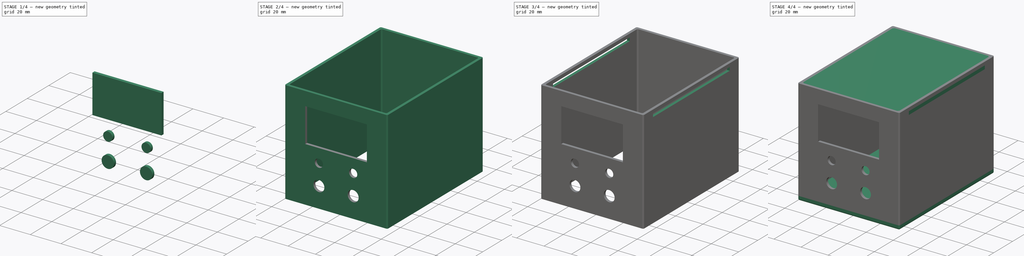
[diagram: build sequence overview — one tinted view per stage of 4, left to right]
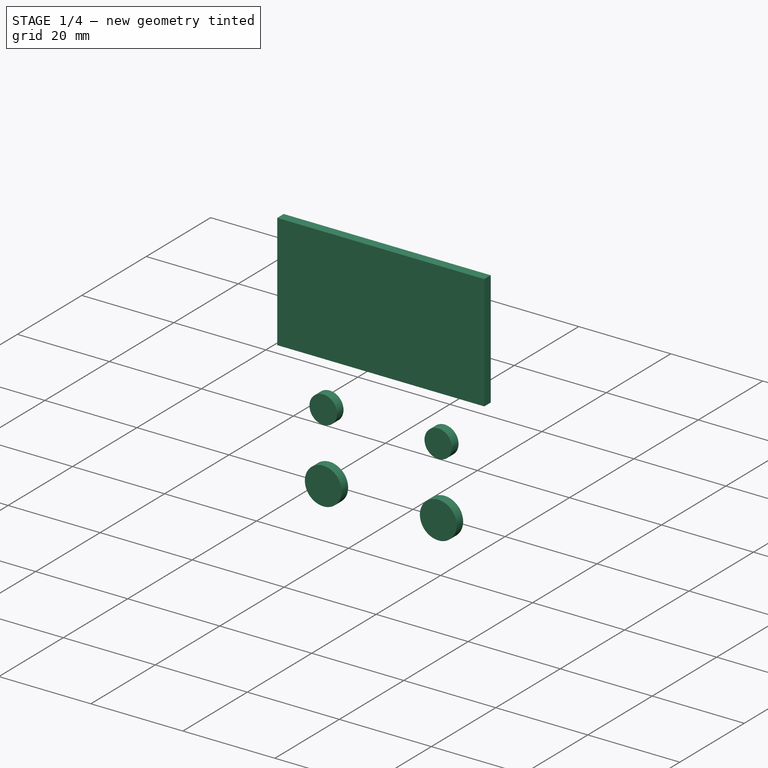
[diagram: stage 1 of 4 — iso view after this stage's code; geometry added in this stage tinted green]
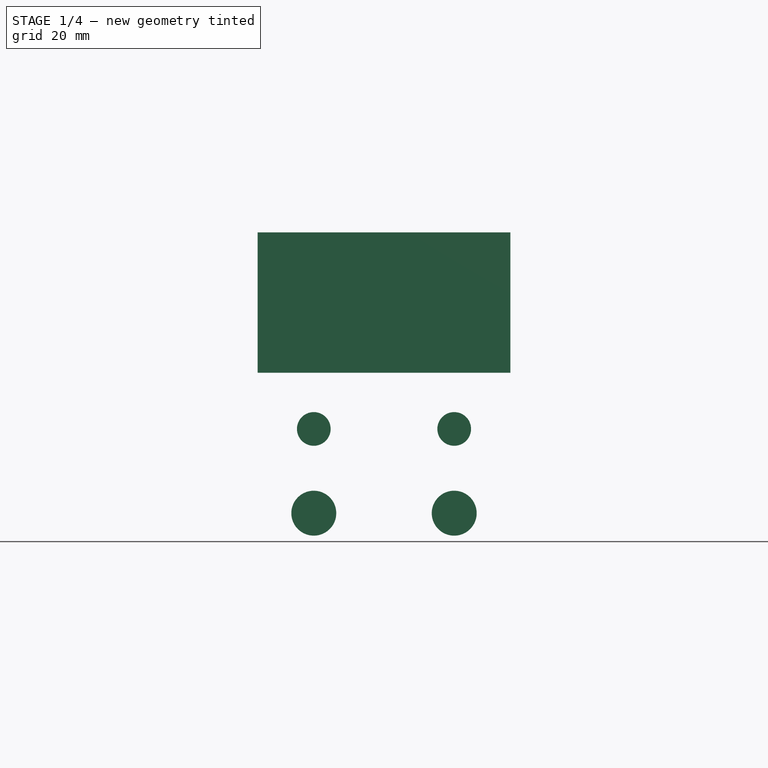
[diagram: stage 1 of 4 — front view after this stage's code; geometry added in this stage tinted green]
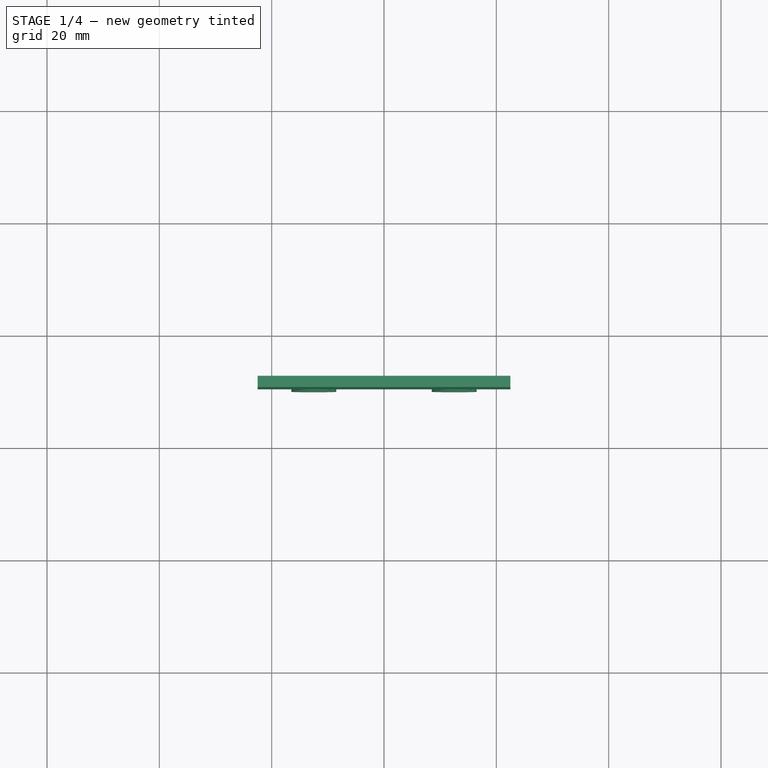
[diagram: stage 1 of 4 — top view after this stage's code; geometry added in this stage tinted green]
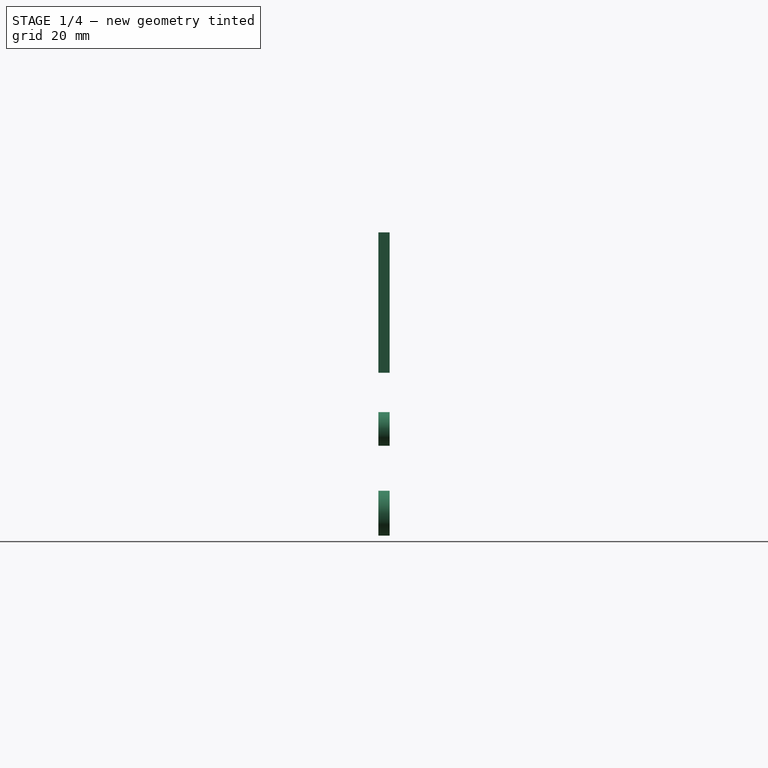
[diagram: stage 1 of 4 — right view after this stage's code; geometry added in this stage tinted green]
FCSTD DOCUMENT  (FreeCAD 0.20R)
Label: VariablePowerSupply
License: All rights reserved
LicenseURL: http://en.wikipedia.org/wiki/All_rights_reserved
objects: Sketcher::SketchObject×7, Part::Extrusion×7, Part::FeaturePython×2, Part::MultiFuse×2, Part::Fillet×1, Spreadsheet::Sheet×1, Part::Cut×1, Part::Mirroring×1
note: 21 computed .brp shape members not serialized (recipe doc carries the construction recipe); baked Part::Feature solids carry a one-line shape summary decoded from their .brp

FEATURE [Sketcher::SketchObject] Sketch
  FullyConstrained = true
  expr: Constraints[10] = Spreadsheet.BaseWidth
  expr: Constraints[11] = Spreadsheet.BaseLength
  sketch-geometry (5):
    g0: LineSegment StartX=37.5 StartY=-50 StartZ=0 EndX=37.5 EndY=50 EndZ=0
    g1: LineSegment StartX=37.5 StartY=50 StartZ=0 EndX=-37.5 EndY=50 EndZ=0
    g2: LineSegment StartX=-37.5 StartY=50 StartZ=0 EndX=-37.5 EndY=-50 EndZ=0
    g3: LineSegment StartX=-37.5 StartY=-50 StartZ=0 EndX=37.5 EndY=-50 EndZ=0
    g4: GeomPoint X=0 Y=-1e-16 Z=0
  constraints (12):
    c: Coincident(g0,g1)
    c: Coincident(g1,g2)
    c: Coincident(g2,g3)
    c: Coincident(g3,g0)
    c: Horizontal(g1)
    c: Horizontal(g3)
    c: Vertical(g0)
    c: Vertical(g2)
    c: Symmetric(g1,g0,g4)
    c: Coincident(g4,g-1)
    c: DistanceX(g3,g3) = 75
    c: DistanceY(g0,g0) = 100
FEATURE [Part::Extrusion] Extrude
  Base = -> Sketch
  Dir = (0,0,1)
  DirMode = 2
  FaceMakerClass = Part::FaceMakerBullseye
  LengthFwd = 3
  LengthRev = 0
  Solid = true
  Symmetric = false
  expr: LengthFwd = Spreadsheet.BaseThickness
FEATURE [Part::Fillet] Fillet
  Base = -> Extrude
  Edges = 8 edges r=1: [Edge1,Edge2,Edge3,Edge5,Edge6,Edge8,Edge9,Edge11]
  expr: .Placement.Rotation.Axis.z = Spreadsheet.Chamfer
FEATURE [Sketcher::SketchObject] Sketch001
  ExternalGeometry = -> [Fillet]
  FullyConstrained = true
  MapMode = 5
  Placement = pos=(0,0,3) rot=(0,0,1;0rad)
  Support = -> [Fillet]
  expr: Constraints[43] = Spreadsheet.WallThickness
  expr: Constraints[44] = Spreadsheet.WallThickness
  sketch-geometry (20):
    g0: ArcOfCircle CenterX=-36.5 CenterY=49 CenterZ=0 NormalX=0 NormalY=0 NormalZ=1 AngleXU=0 Radius=1 StartAngle=1.5708 EndAngle=3.14159
    g1: LineSegment StartX=-36.5 StartY=50 StartZ=0 EndX=36.5 EndY=50 EndZ=0
    g2: ArcOfCircle CenterX=36.5 CenterY=49 CenterZ=0 NormalX=0 NormalY=0 NormalZ=1 AngleXU=0 Radius=1 StartAngle=-3.6e-15 EndAngle=1.5708
    g3: LineSegment StartX=37.5 StartY=49 StartZ=0 EndX=37.5 EndY=-49 EndZ=0
    g4: ArcOfCircle CenterX=36.5 CenterY=-49 CenterZ=0 NormalX=0 NormalY=0 NormalZ=1 AngleXU=0 Radius=1 StartAngle=4.71239 EndAngle=6.28319
    g5: LineSegment StartX=36.5 StartY=-50 StartZ=0 EndX=-36.5 EndY=-50 EndZ=0
    g6: ArcOfCircle CenterX=-36.5 CenterY=-49 CenterZ=0 NormalX=0 NormalY=0 NormalZ=1 AngleXU=0 Radius=1 StartAngle=3.14159 EndAngle=4.71239
    g7: LineSegment StartX=-37.5 StartY=-49 StartZ=0 EndX=-37.5 EndY=49 EndZ=0
    g8: GeomPoint X=-37.5 Y=50 Z=0
    g9: GeomPoint X=37.5 Y=-50 Z=0
    g10: ArcOfCircle CenterX=-34.5 CenterY=47 CenterZ=0 NormalX=0 NormalY=0 NormalZ=1 AngleXU=0 Radius=1 StartAngle=1.5708 EndAngle=3.14159
    g11: LineSegment StartX=-34.5 StartY=48 StartZ=0 EndX=34.5 EndY=48 EndZ=0
    g12: ArcOfCircle CenterX=34.5 CenterY=47 CenterZ=0 NormalX=0 NormalY=0 NormalZ=1 AngleXU=0 Radius=1 StartAngle=-2.7e-15 EndAngle=1.5708
    g13: LineSegment StartX=35.5 StartY=47 StartZ=0 EndX=35.5 EndY=-47 EndZ=0
    g14: ArcOfCircle CenterX=34.5 CenterY=-47 CenterZ=0 NormalX=0 NormalY=0 NormalZ=1 AngleXU=0 Radius=1 StartAngle=4.71239 EndAngle=6.28319
    g15: LineSegment StartX=34.5 StartY=-48 StartZ=0 EndX=-34.5 EndY=-48 EndZ=0
    g16: ArcOfCircle CenterX=-34.5 CenterY=-47 CenterZ=0 NormalX=0 NormalY=0 NormalZ=1 AngleXU=0 Radius=1 StartAngle=3.14159 EndAngle=4.71239
    g17: LineSegment StartX=-35.5 StartY=-47 StartZ=0 EndX=-35.5 EndY=47 EndZ=0
    g18: GeomPoint X=-35.5 Y=48 Z=0
    g19: GeomPoint X=35.5 Y=-48 Z=0
  constraints (45):
    c: Tangent(g0,g1) = 1.5708
    c: Tangent(g1,g2) = 1.5708
    c: Tangent(g2,g3) = 1.5708
    c: Tangent(g3,g4) = 1.5708
    c: Tangent(g4,g5) = 1.5708
    c: Tangent(g5,g6) = 1.5708
    c: Tangent(g6,g7) = 1.5708
    c: Tangent(g7,g0) = 1.5708
    c: Horizontal(g1)
    c: Horizontal(g5)
    c: Vertical(g3)
    c: Vertical(g7)
    c: Equal(g0,g2)
    c: Equal(g2,g4)
    c: Equal(g4,g6)
    c: PointOnObject(g8,g1)
    c: PointOnObject(g8,g7)
    c: PointOnObject(g9,g3)
    c: PointOnObject(g9,g5)
    c: Symmetric(g6,g2,g-1)
    c: Equal(g0,g-3)
    c: Coincident(g0,g-4)
    c: Tangent(g10,g11) = 1.5708
    c: Tangent(g11,g12) = 1.5708
    c: Tangent(g12,g13) = 1.5708
    c: Tangent(g13,g14) = 1.5708
    c: Tangent(g14,g15) = 1.5708
    c: Tangent(g15,g16) = 1.5708
    c: Tangent(g16,g17) = 1.5708
    c: Tangent(g17,g10) = 1.5708
    c: Horizontal(g11)
    c: Horizontal(g15)
    c: Vertical(g13)
    c: Vertical(g17)
    c: Equal(g10,g12)
    c: Equal(g12,g14)
    c: Equal(g14,g16)
    c: PointOnObject(g18,g11)
    c: PointOnObject(g18,g17)
    c: PointOnObject(g19,g13)
    c: PointOnObject(g19,g15)
    c: Symmetric(g10,g14,g-1)
    c: Equal(g10,g0)
    c: DistanceX(g0,g10) = 2
    c: DistanceY(g10,g0) = 2
FEATURE [Spreadsheet::Sheet] Spreadsheet
  cells = A1=BaseThickness; B1(BaseThickness)=3; A2=WallThickness; B2(WallThickness)=2; A3=BaseWidth; B3(BaseWidth)=75; A4=BaseLenth; B4(BaseLength)=100; A5=WallHeight; B5(WallHeight)=100; A6=Chamfer; B6(Chamfer)=2
FEATURE [Part::Extrusion] Extrude001
  Base = -> Sketch001
  Dir = (0,0,1)
  DirMode = 2
  FaceMakerClass = Part::FaceMakerBullseye
  LengthFwd = 75
  LengthRev = 0
  Solid = true
  Symmetric = false
FEATURE [Sketcher::SketchObject] Sketch002
  ExternalGeometry = -> [Extrude001,Fillet]
  FullyConstrained = true
  MapMode = 5
  Placement = pos=(0,-50,0) rot=(1,0,0;1.5708rad)
  Support = -> [Extrude001]
  sketch-geometry (9):
    g0: LineSegment StartX=22.5 StartY=68 StartZ=0 EndX=22.5 EndY=43 EndZ=0
    g1: LineSegment StartX=22.5 StartY=43 StartZ=0 EndX=-22.5 EndY=43 EndZ=0
    g2: LineSegment StartX=-22.5 StartY=43 StartZ=0 EndX=-22.5 EndY=68 EndZ=0
    g3: LineSegment StartX=-22.5 StartY=68 StartZ=0 EndX=22.5 EndY=68 EndZ=0
    g4: GeomPoint X=0 Y=55.5 Z=0
    g5: Circle CenterX=12.5 CenterY=33 CenterZ=0 NormalX=0 NormalY=0 NormalZ=1 AngleXU=0 Radius=3
    g6: Circle CenterX=-12.5 CenterY=33 CenterZ=0 NormalX=0 NormalY=0 NormalZ=1 AngleXU=0 Radius=3
    g7: Circle CenterX=-12.5 CenterY=18 CenterZ=0 NormalX=0 NormalY=0 NormalZ=1 AngleXU=0 Radius=4
    g8: Circle CenterX=12.5 CenterY=18 CenterZ=0 NormalX=0 NormalY=0 NormalZ=1 AngleXU=0 Radius=4
  constraints (24):
    c: Coincident(g0,g1)
    c: Coincident(g1,g2)
    c: Coincident(g2,g3)
    c: Coincident(g3,g0)
    c: Horizontal(g1)
    c: Horizontal(g3)
    c: Vertical(g0)
    c: Vertical(g2)
    c: Symmetric(g1,g0,g4)
    c: PointOnObject(g4,g-2)
    c: DistanceX(g3,g3) = 45
    c: DistanceY(g0,g0) = 25
    c: Vertical(g6,g7)
    c: Vertical(g5,g8)
    c: Horizontal(g7,g8)
    c: Equal(g8,g7)
    c: Equal(g6,g5)
    c: Symmetric(g6,g5,g-2)
    c: Diameter(g6) = 6
    c: Diameter(g7) = 8
    c: DistanceX(g6,g5) = 25
    c: DistanceY(g2,g-4) = 10
    c: DistanceY(g6,g1) = 10
    c: DistanceY(g7,g6) = 15
FEATURE [Part::Extrusion] Extrude002
  Base = -> Sketch002
  Dir = (0,-1,2e-16)
  DirMode = 2
  FaceMakerClass = Part::FaceMakerBullseye
  LengthFwd = 0
  LengthRev = 2
  Solid = true
  Symmetric = false
  expr: LengthRev = Spreadsheet.WallThickness
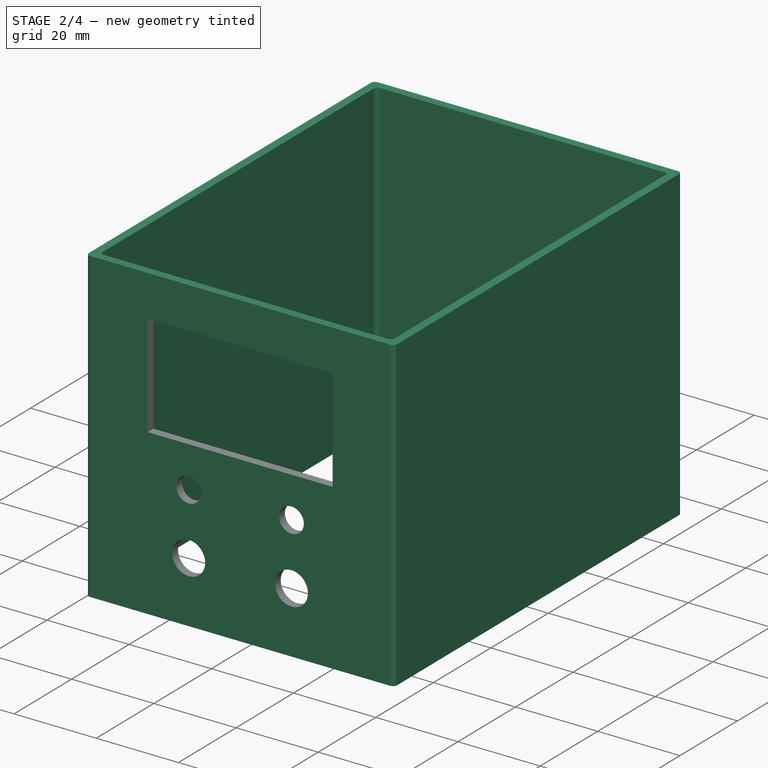
[diagram: stage 2 of 4 — iso view after this stage's code; geometry added in this stage tinted green]
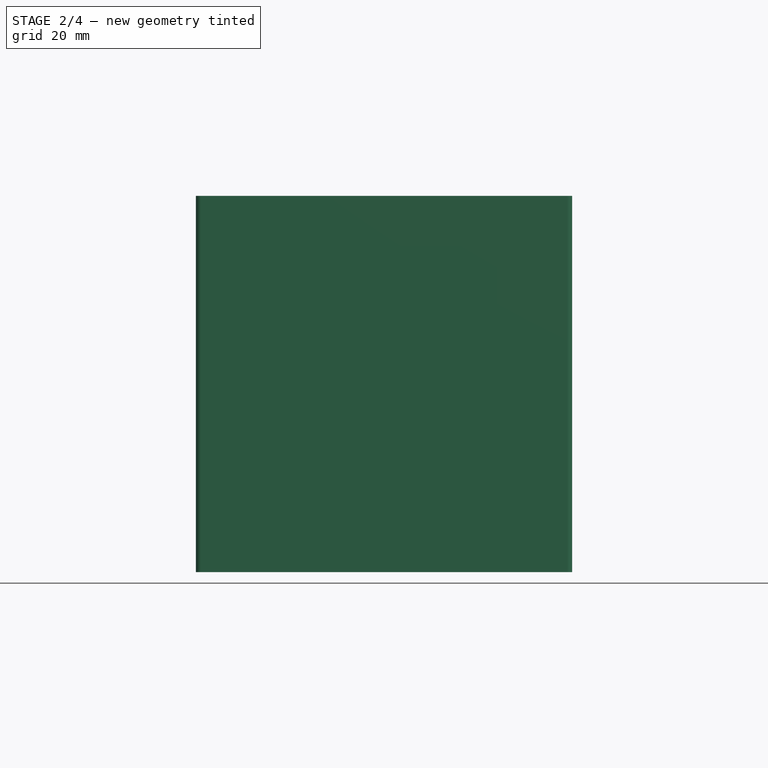
[diagram: stage 2 of 4 — front view after this stage's code; geometry added in this stage tinted green]
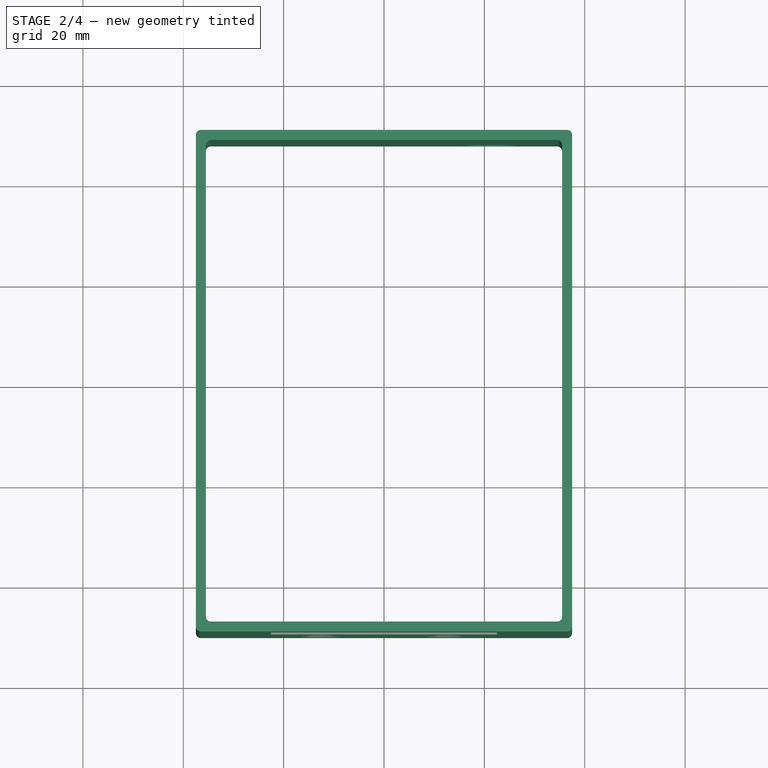
[diagram: stage 2 of 4 — top view after this stage's code; geometry added in this stage tinted green]
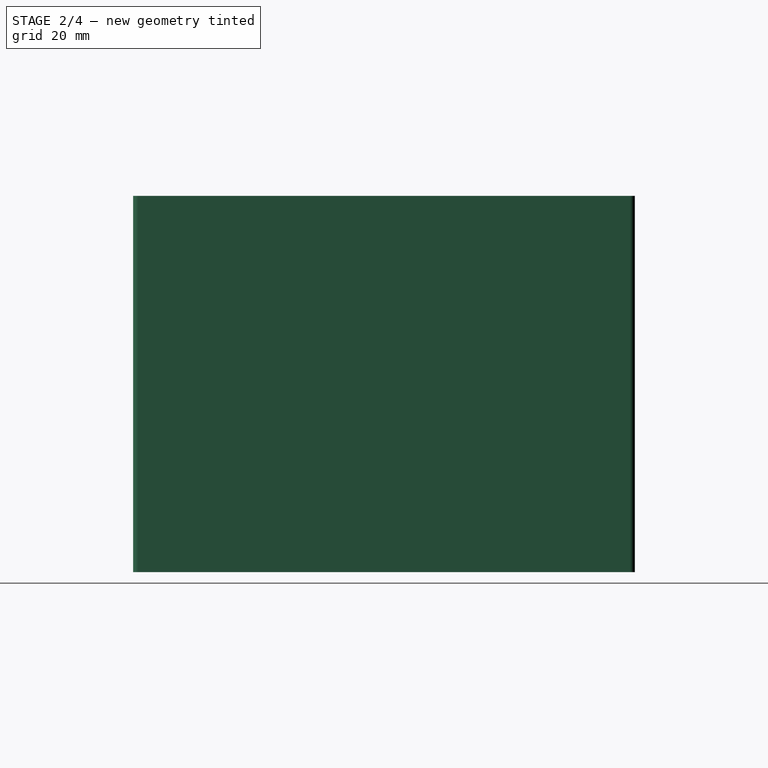
[diagram: stage 2 of 4 — right view after this stage's code; geometry added in this stage tinted green]
FEATURE [Part::Cut] Cut
  Base = -> Extrude001
  Tool = -> Extrude002
FEATURE [Sketcher::SketchObject] Sketch003
  ExternalGeometry = -> [Cut,Fillet]
  FullyConstrained = true
  MapMode = 5
  Placement = pos=(0,50,0) rot=(0,0.707107,0.707107;3.14159rad)
  Support = -> [Cut]
  sketch-geometry (1):
    g0: Circle CenterX=-21.5 CenterY=13 CenterZ=0 NormalX=0 NormalY=0 NormalZ=1 AngleXU=0 Radius=6
  constraints (3):
    c: Diameter(g0) = 12
    c: DistanceX(g-4,g0) = 15
    c: DistanceY(g-4,g0) = 10
FEATURE [Part::Extrusion] Extrude003
  Base = -> Sketch003
  Dir = (0,1,-2e-16)
  DirMode = 2
  FaceMakerClass = Part::FaceMakerBullseye
  LengthFwd = 0
  LengthRev = 2
  Solid = true
  Symmetric = false
FEATURE [Part::FeaturePython] XOR  # WARN: FeaturePython — macro-defined, semantics opaque (R4)
  Objects = -> [Extrude003,Cut]
  Tolerance = 0
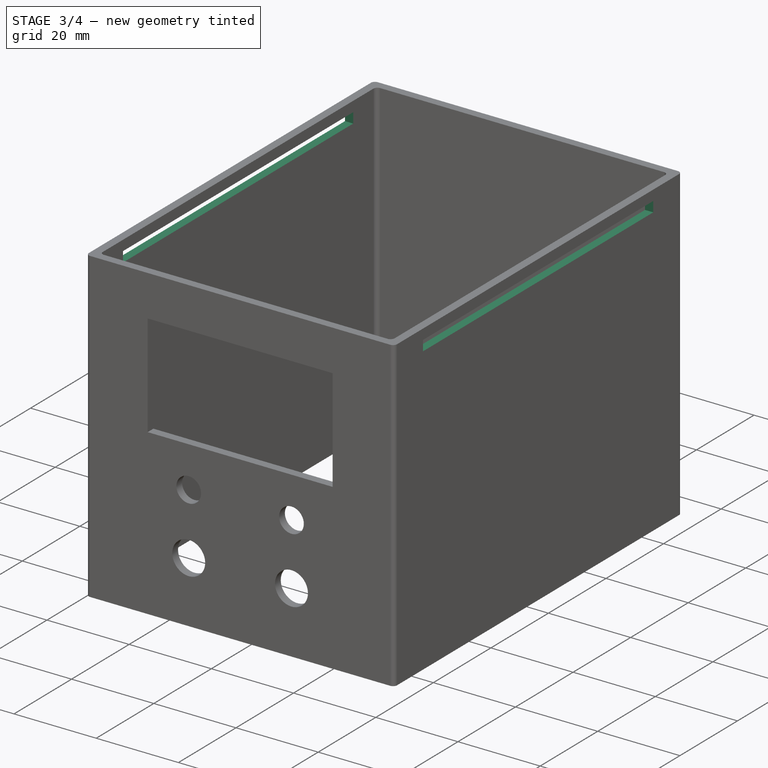
[diagram: stage 3 of 4 — iso view after this stage's code; geometry added in this stage tinted green]
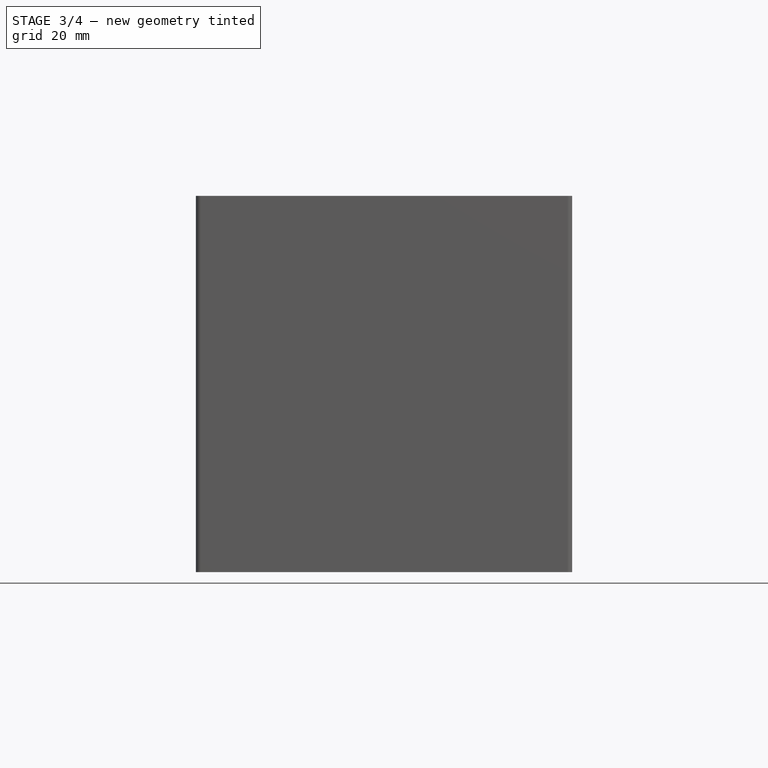
[diagram: stage 3 of 4 — front view after this stage's code; geometry added in this stage tinted green]
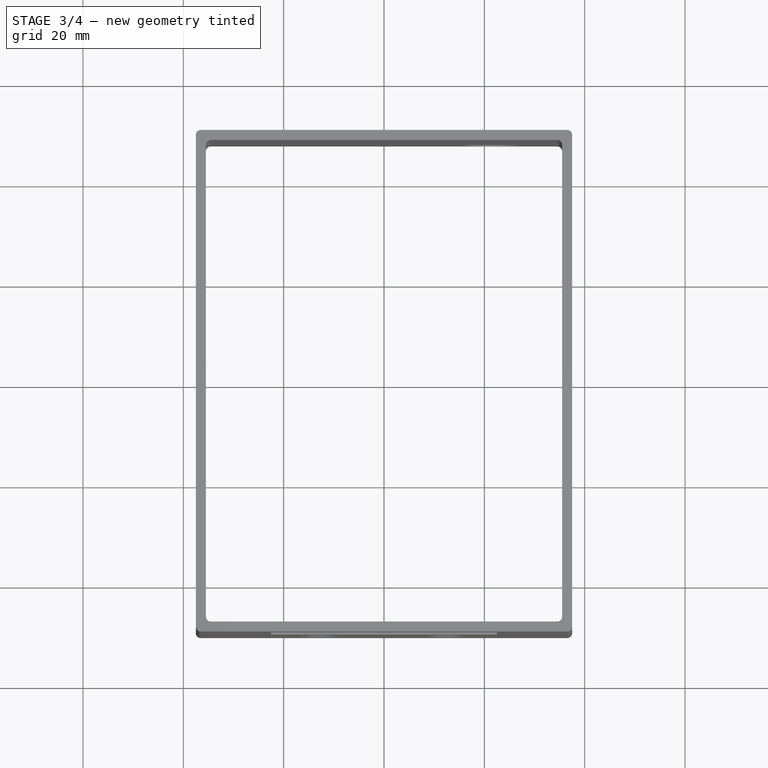
[diagram: stage 3 of 4 — top view after this stage's code; geometry added in this stage tinted green]
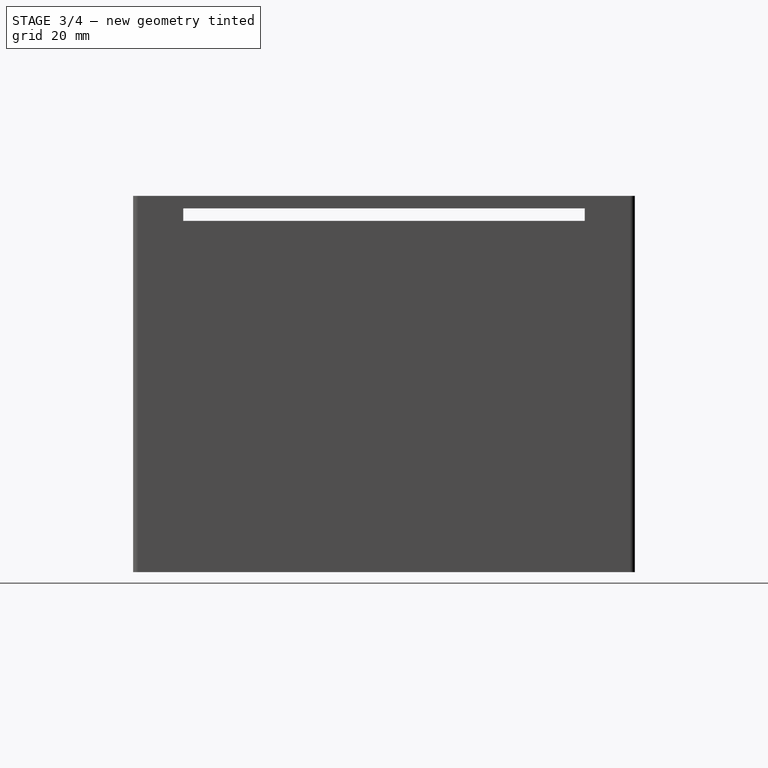
[diagram: stage 3 of 4 — right view after this stage's code; geometry added in this stage tinted green]
FEATURE [Sketcher::SketchObject] Sketch005
  ExternalGeometry = -> [XOR]
  FullyConstrained = true
  MapMode = 5
  Placement = pos=(37.5,0,0) rot=(0.57735,0.57735,0.57735;2.0944rad)
  Support = -> [XOR]
  sketch-geometry (5):
    g0: LineSegment StartX=40 StartY=75.5 StartZ=0 EndX=40 EndY=73 EndZ=0
    g1: LineSegment StartX=40 StartY=73 StartZ=0 EndX=-40 EndY=73 EndZ=0
    g2: LineSegment StartX=-40 StartY=73 StartZ=0 EndX=-40 EndY=75.5 EndZ=0
    g3: LineSegment StartX=-40 StartY=75.5 StartZ=0 EndX=40 EndY=75.5 EndZ=0
    g4: GeomPoint X=0 Y=74.25 Z=0
  constraints (13):
    c: Coincident(g0,g1)
    c: Coincident(g1,g2)
    c: Coincident(g2,g3)
    c: Coincident(g3,g0)
    c: Horizontal(g1)
    c: Horizontal(g3)
    c: Vertical(g0)
    c: Vertical(g2)
    c: Symmetric(g1,g0,g4)
    c: PointOnObject(g4,g-2)
    c: DistanceX(g1,g1) = 80
    c: DistanceY(g0,g0) = 2.5
    c: DistanceY(g0,g-3) = 2.5
FEATURE [Part::Extrusion] Extrude004
  Base = -> Sketch005
  Dir = (1,0,0)
  DirMode = 2
  FaceMakerClass = Part::FaceMakerBullseye
  LengthFwd = 0
  LengthRev = 2
  Solid = true
  Symmetric = false
  expr: LengthRev = Spreadsheet.WallThickness
FEATURE [Part::Mirroring] Part__Mirroring  label="Extrude004 (Mirror #1)"
  Base = (0,0,0)
  Normal = (1,0,0)
  Source = -> Extrude004
FEATURE [Part::FeaturePython] XOR001  # WARN: FeaturePython — macro-defined, semantics opaque (R4)
  Objects = -> [Extrude004,Part__Mirroring,XOR]
  Tolerance = 0
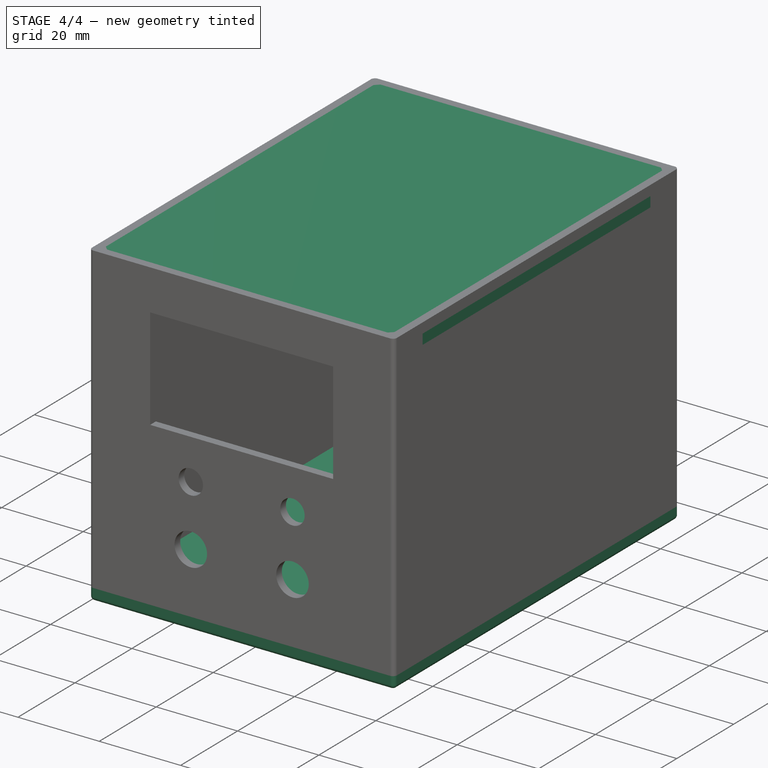
[diagram: stage 4 of 4 — iso view after this stage's code; geometry added in this stage tinted green]
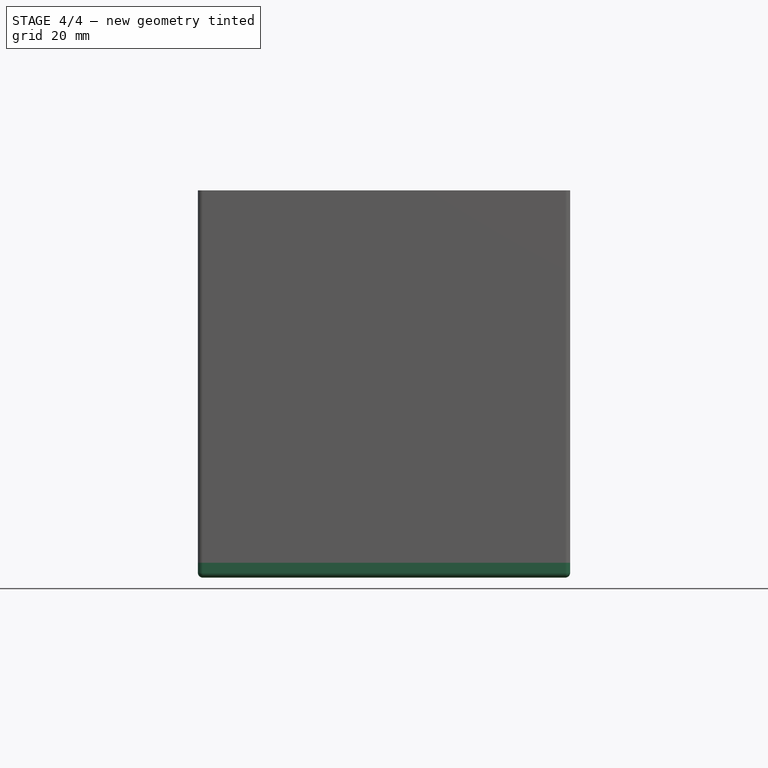
[diagram: stage 4 of 4 — front view after this stage's code; geometry added in this stage tinted green]
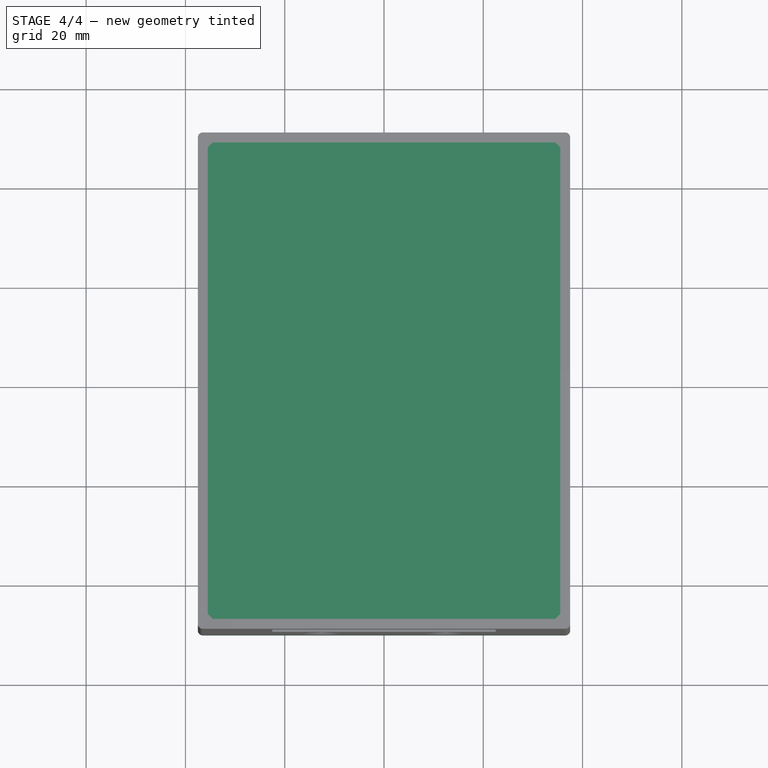
[diagram: stage 4 of 4 — top view after this stage's code; geometry added in this stage tinted green]
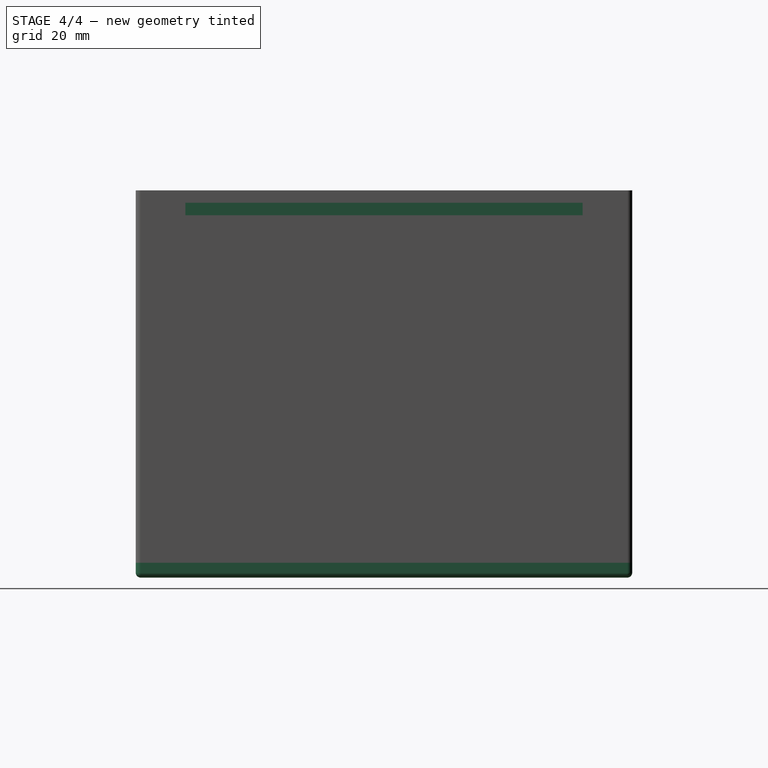
[diagram: stage 4 of 4 — right view after this stage's code; geometry added in this stage tinted green]
FEATURE [Sketcher::SketchObject] Sketch006
  ExternalGeometry = -> [XOR001]
  FullyConstrained = true
  MapMode = 5
  Placement = pos=(0,0,73) rot=(0,0,1;0rad)
  Support = -> [XOR001]
  sketch-geometry (4):
    g0: LineSegment StartX=-37.5 StartY=40 StartZ=0 EndX=37.5 EndY=40 EndZ=0
    g1: LineSegment StartX=37.5 StartY=40 StartZ=0 EndX=37.5 EndY=-40 EndZ=0
    g2: LineSegment StartX=37.5 StartY=-40 StartZ=0 EndX=-37.5 EndY=-40 EndZ=0
    g3: LineSegment StartX=-37.5 StartY=-40 StartZ=0 EndX=-37.5 EndY=40 EndZ=0
  constraints (10):
    c: Coincident(g0,g1)
    c: Coincident(g1,g2)
    c: Coincident(g2,g3)
    c: Coincident(g3,g0)
    c: Horizontal(g0)
    c: Horizontal(g2)
    c: Vertical(g1)
    c: Vertical(g3)
    c: Coincident(g0,g-5)
    c: Coincident(g1,g-7)
FEATURE [Part::Extrusion] Extrude005
  Base = -> Sketch006
  Dir = (0,0,1)
  DirMode = 2
  FaceMakerClass = Part::FaceMakerBullseye
  LengthFwd = 2.5
  LengthRev = 0
  Solid = true
  Symmetric = false
FEATURE [Sketcher::SketchObject] Sketch007
  ExternalGeometry = -> [XOR001]
  FullyConstrained = true
  MapMode = 5
  Placement = pos=(0,0,78) rot=(0,0,1;0rad)
  Support = -> [XOR001]
  sketch-geometry (10):
    g0: ArcOfCircle CenterX=-34.5 CenterY=47 CenterZ=0 NormalX=0 NormalY=0 NormalZ=1 AngleXU=0 Radius=1 StartAngle=1.5708 EndAngle=3.14159
    g1: LineSegment StartX=-34.5 StartY=48 StartZ=0 EndX=34.5 EndY=48 EndZ=0
    g2: ArcOfCircle CenterX=34.5 CenterY=47 CenterZ=0 NormalX=0 NormalY=0 NormalZ=1 AngleXU=0 Radius=1 StartAngle=1.8867e-12 EndAngle=1.5708
    g3: LineSegment StartX=35.5 StartY=47 StartZ=0 EndX=35.5 EndY=-47 EndZ=0
    g4: ArcOfCircle CenterX=34.5 CenterY=-47 CenterZ=0 NormalX=0 NormalY=0 NormalZ=1 AngleXU=0 Radius=1 StartAngle=4.71239 EndAngle=6.28319
    g5: LineSegment StartX=34.5 StartY=-48 StartZ=0 EndX=-34.5 EndY=-48 EndZ=0
    g6: ArcOfCircle CenterX=-34.5 CenterY=-47 CenterZ=0 NormalX=0 NormalY=0 NormalZ=1 AngleXU=0 Radius=1 StartAngle=3.14159 EndAngle=4.71239
    g7: LineSegment StartX=-35.5 StartY=-47 StartZ=0 EndX=-35.5 EndY=47 EndZ=0
    g8: GeomPoint X=-35.5 Y=48 Z=0
    g9: GeomPoint X=35.5 Y=-48 Z=0
  constraints (22):
    c: Tangent(g0,g1) = 1.5708
    c: Tangent(g1,g2) = 1.5708
    c: Tangent(g2,g3) = 1.5708
    c: Tangent(g3,g4) = 1.5708
    c: Tangent(g4,g5) = 1.5708
    c: Tangent(g5,g6) = 1.5708
    c: Tangent(g6,g7) = 1.5708
    c: Tangent(g7,g0) = 1.5708
    c: Horizontal(g1)
    c: Horizontal(g5)
    c: Vertical(g3)
    c: Vertical(g7)
    c: Equal(g0,g2)
    c: Equal(g2,g4)
    c: Equal(g4,g6)
    c: PointOnObject(g8,g1)
    c: PointOnObject(g8,g7)
    c: PointOnObject(g9,g3)
    c: PointOnObject(g9,g5)
    c: Coincident(g4,g-4)
    c: Coincident(g0,g-3)
    c: Equal(g0,g-3)
FEATURE [Part::Extrusion] Extrude006
  Base = -> Sketch007
  Dir = (0,0,1)
  DirMode = 2
  FaceMakerClass = Part::FaceMakerBullseye
  LengthFwd = 0
  LengthRev = 2.5
  Solid = true
  Symmetric = false
FEATURE [Part::MultiFuse] Fusion
  Shapes = -> [Extrude006,Extrude005]
FEATURE [Part::MultiFuse] Fusion001
  Shapes = -> [Fillet,XOR001]
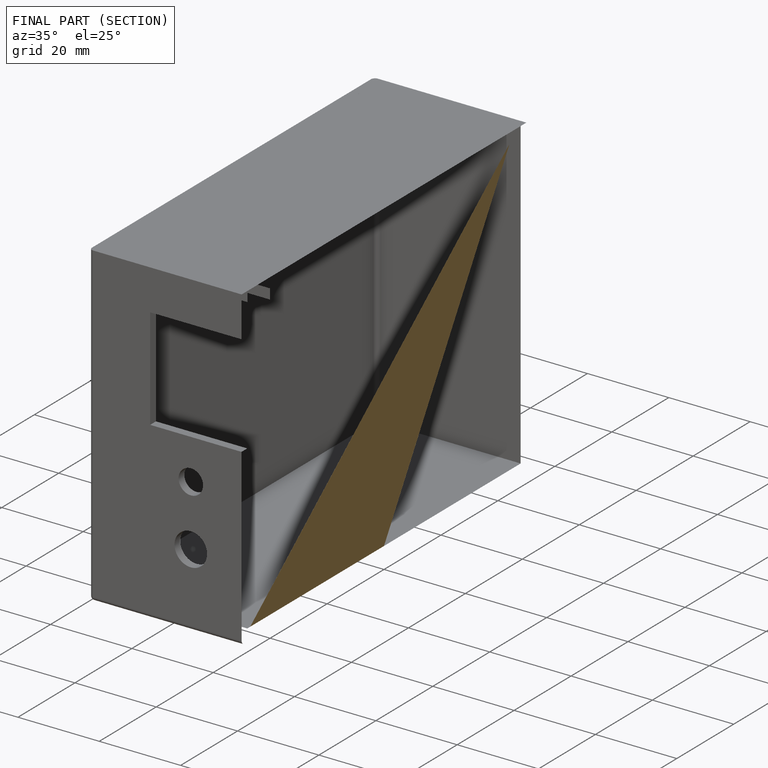
[diagram: finished part — half-section view (interior)]
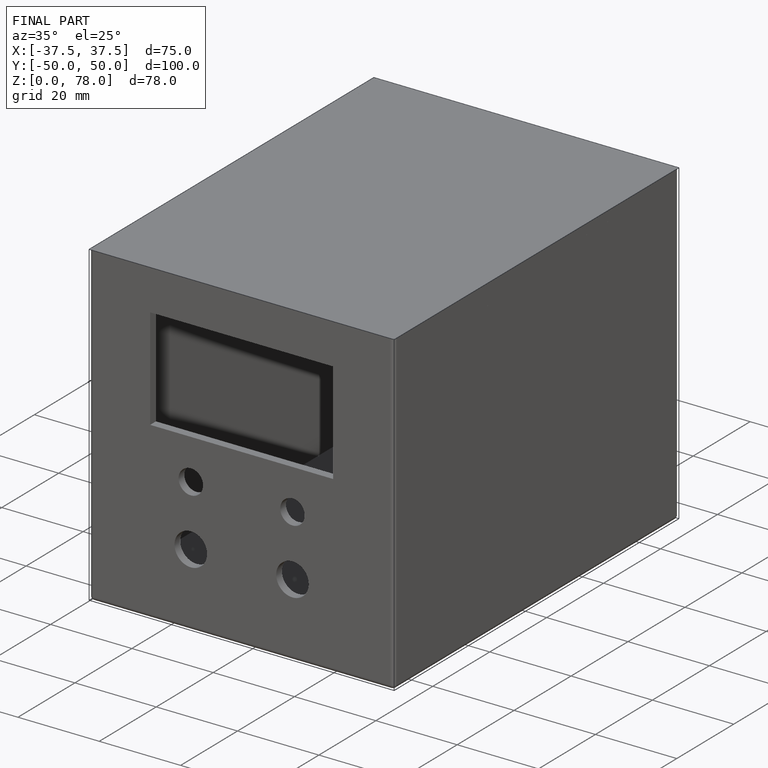
[diagram: finished part — iso view with bounding-box wireframe]
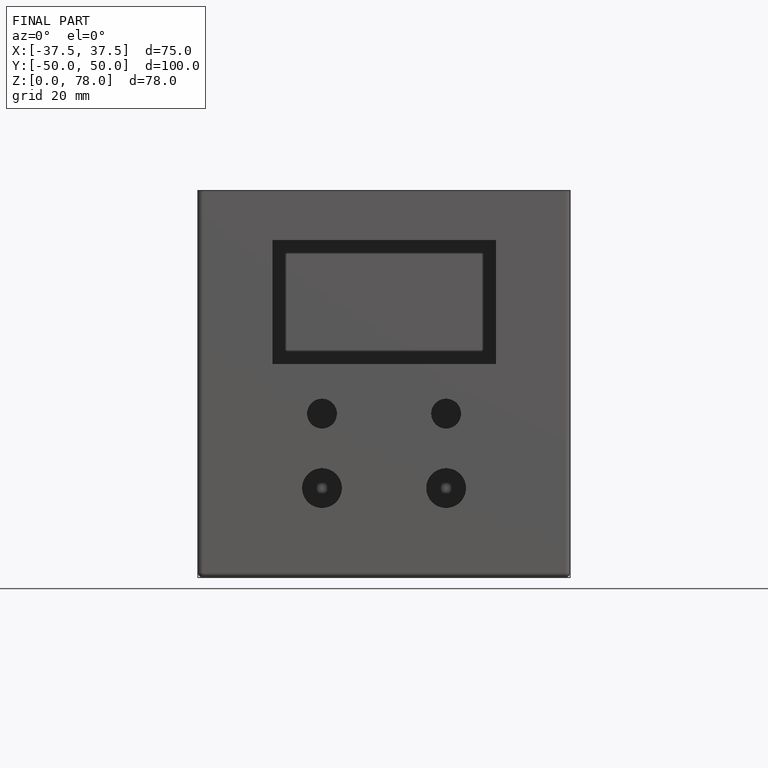
[diagram: finished part — front view with bounding-box wireframe]
